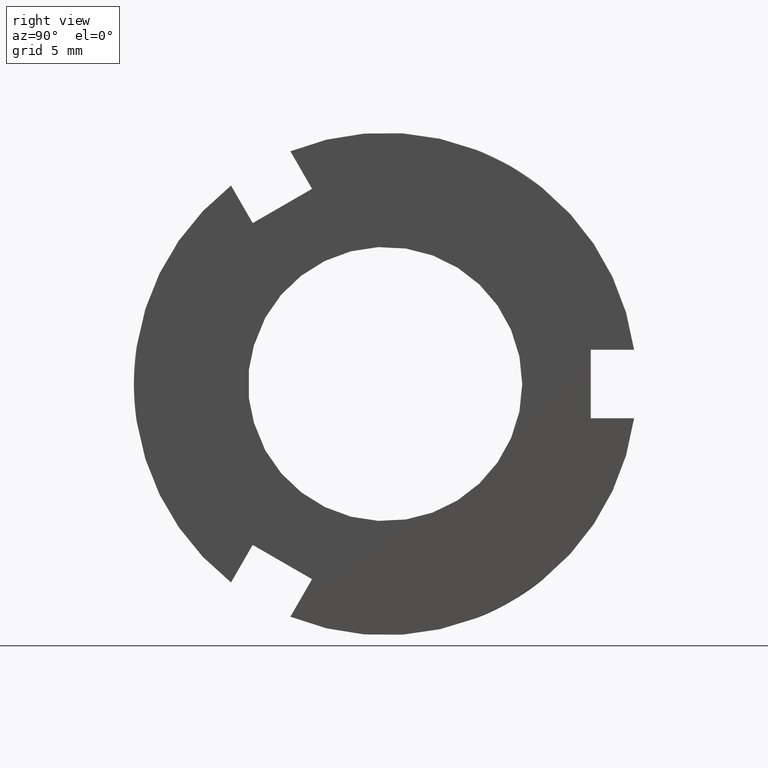
[diagram: clean part render]
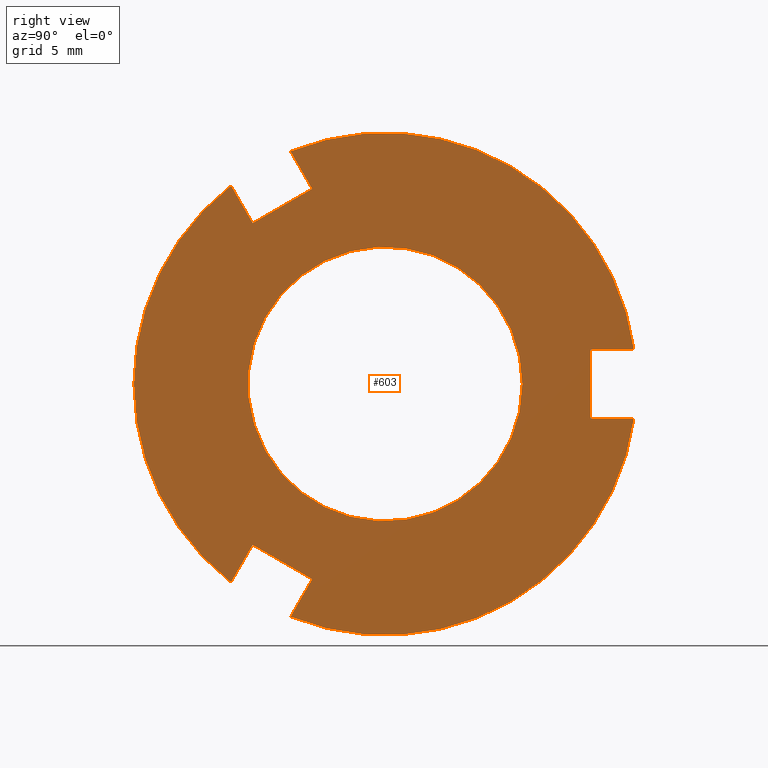
[diagram: same view with one face highlighted and labeled with its STEP entity id]
A machine part, right view. The second image highlights one B-rep face of the part: STEP entity #603.
In plain terms, the highlighted planar face has unit normal (1, 0, 0).
Its self-contained STEP definition (entity closure, byte-faithful):
#83=CARTESIAN_POINT('',(7.999999999999996,-5.799038105676662,-7.044228634059944));
#84=VERTEX_POINT('',#83);
#91=CARTESIAN_POINT('',(7.999999999999996,-6.747661785102503,-8.687293044088431));
#92=VERTEX_POINT('',#91);
#93=CARTESIAN_POINT('',(7.999999999999996,-6.747661785102503,-8.687293044088431));
#94=DIRECTION('',(0.0,0.500000000000000,0.866025403784438));
#95=VECTOR('',#94,1.897247358851682);
#96=LINE('',#93,#95);
#97=EDGE_CURVE('',#92,#84,#96,.T.);
#123=CARTESIAN_POINT('',(7.999999999999996,-4.149585573749189,-10.187293044088435));
#124=VERTEX_POINT('',#123);
#131=CARTESIAN_POINT('',(7.999999999999996,-3.200961894323347,-8.544228634059948));
#132=VERTEX_POINT('',#131);
#133=CARTESIAN_POINT('',(7.999999999999996,-3.200961894323347,-8.544228634059950));
#134=DIRECTION('',(0.0,-0.500000000000001,-0.866025403784438));
#135=VECTOR('',#134,1.897247358851682);
#136=LINE('',#133,#135);
#137=EDGE_CURVE('',#132,#124,#136,.T.);
#162=CARTESIAN_POINT('',(7.999999999999996,-5.799038105676664,-7.044228634059948));
#163=DIRECTION('',(0.0,0.866025403784438,-0.500000000000001));
#164=VECTOR('',#163,3.000000000000000);
#165=LINE('',#162,#164);
#166=EDGE_CURVE('',#84,#132,#165,.T.);
#281=CARTESIAN_POINT('',(7.999999999999996,-3.200961894323340,8.544228634059948));
#282=VERTEX_POINT('',#281);
#289=CARTESIAN_POINT('',(7.999999999999996,-4.149585573749180,10.187293044088436));
#290=VERTEX_POINT('',#289);
#291=CARTESIAN_POINT('',(7.999999999999996,-4.149585573749180,10.187293044088435));
#292=DIRECTION('',(0.0,0.500000000000000,-0.866025403784439));
#293=VECTOR('',#292,1.897247358851681);
#294=LINE('',#291,#293);
#295=EDGE_CURVE('',#290,#282,#294,.T.);
#321=CARTESIAN_POINT('',(7.999999999999996,-6.747661785102497,8.687293044088436));
#322=VERTEX_POINT('',#321);
#329=CARTESIAN_POINT('',(7.999999999999996,-5.799038105676656,7.044228634059949));
#330=VERTEX_POINT('',#329);
#331=CARTESIAN_POINT('',(7.999999999999996,-5.799038105676658,7.044228634059950));
#332=DIRECTION('',(0.0,-0.500000000000000,0.866025403784439));
#333=VECTOR('',#332,1.897247358851680);
#334=LINE('',#331,#333);
#335=EDGE_CURVE('',#330,#322,#334,.T.);
#360=CARTESIAN_POINT('',(7.999999999999996,-3.200961894323341,8.544228634059950));
#361=DIRECTION('',(0.0,-0.866025403784439,-0.500000000000000));
#362=VECTOR('',#361,2.999999999999999);
#363=LINE('',#360,#362);
#364=EDGE_CURVE('',#282,#330,#363,.T.);
#532=CARTESIAN_POINT('',(7.999999999999996,8.500000000000000,0.0));
#533=DIRECTION('',(1.0,0.0,0.0));
#534=DIRECTION('',(0.0,0.0,-1.0));
#535=AXIS2_PLACEMENT_3D('',#532,#533,#534);
#536=PLANE('',#535);
#537=ORIENTED_EDGE('',*,*,#97,.T.);
#538=ORIENTED_EDGE('',*,*,#166,.T.);
#539=ORIENTED_EDGE('',*,*,#137,.T.);
#540=CARTESIAN_POINT('',(7.999999999999996,10.897247358851681,-1.500000000000000));
#541=VERTEX_POINT('',#540);
#542=CARTESIAN_POINT('',(7.999999999999996,0.0,0.0));
#543=DIRECTION('',(1.0,0.0,0.0));
#544=DIRECTION('',(0.0,1.0,0.0));
#545=AXIS2_PLACEMENT_3D('',#542,#543,#544);
#546=CIRCLE('',#545,10.999999999999998);
#547=EDGE_CURVE('',#124,#541,#546,.T.);
#548=ORIENTED_EDGE('',*,*,#547,.T.);
#549=CARTESIAN_POINT('',(7.999999999999996,9.0,-1.500000000000000));
#550=VERTEX_POINT('',#549);
#551=CARTESIAN_POINT('',(7.999999999999996,10.897247358851681,-1.500000000000000));
#552=DIRECTION('',(0.0,-1.0,0.0));
#553=VECTOR('',#552,1.897247358851681);
#554=LINE('',#551,#553);
#555=EDGE_CURVE('',#541,#550,#554,.T.);
#556=ORIENTED_EDGE('',*,*,#555,.T.);
#557=CARTESIAN_POINT('',(7.999999999999996,9.0,1.500000000000000));
#558=VERTEX_POINT('',#557);
#559=CARTESIAN_POINT('',(7.999999999999996,9.0,-1.500000000000000));
#560=DIRECTION('',(0.0,0.0,1.0));
#561=VECTOR('',#560,3.000000000000001);
#562=LINE('',#559,#561);
#563=EDGE_CURVE('',#550,#558,#562,.T.);
#564=ORIENTED_EDGE('',*,*,#563,.T.);
#565=CARTESIAN_POINT('',(7.999999999999996,10.897247358851681,1.500000000000000));
#566=VERTEX_POINT('',#565);
#567=CARTESIAN_POINT('',(7.999999999999996,8.999999999999998,1.500000000000000));
#568=DIRECTION('',(0.0,1.0,0.0));
#569=VECTOR('',#568,1.897247358851681);
#570=LINE('',#567,#569);
#571=EDGE_CURVE('',#558,#566,#570,.T.);
#572=ORIENTED_EDGE('',*,*,#571,.T.);
#573=CARTESIAN_POINT('',(7.999999999999996,0.0,0.0));
#574=DIRECTION('',(1.0,0.0,0.0));
#575=DIRECTION('',(0.0,1.0,0.0));
#576=AXIS2_PLACEMENT_3D('',#573,#574,#575);
#577=CIRCLE('',#576,10.999999999999998);
#578=EDGE_CURVE('',#566,#290,#577,.T.);
#579=ORIENTED_EDGE('',*,*,#578,.T.);
#580=ORIENTED_EDGE('',*,*,#295,.T.);
#581=ORIENTED_EDGE('',*,*,#364,.T.);
#582=ORIENTED_EDGE('',*,*,#335,.T.);
#583=CARTESIAN_POINT('',(7.999999999999996,0.0,0.0));
#584=DIRECTION('',(1.0,0.0,0.0));
#585=DIRECTION('',(0.0,1.0,0.0));
#586=AXIS2_PLACEMENT_3D('',#583,#584,#585);
#587=CIRCLE('',#586,10.999999999999998);
#588=EDGE_CURVE('',#322,#92,#587,.T.);
#589=ORIENTED_EDGE('',*,*,#588,.T.);
#590=EDGE_LOOP('',(#537,#538,#539,#548,#556,#564,#572,#579,#580,#581,#582,#589));
#591=FACE_OUTER_BOUND('',#590,.T.);
#592=CARTESIAN_POINT('',(7.999999999999997,6.000000000000001,0.0));
#593=VERTEX_POINT('',#592);
#594=CARTESIAN_POINT('',(7.999999999999997,0.0,0.0));
#595=DIRECTION('',(1.0,0.0,0.0));
#596=DIRECTION('',(0.0,1.0,0.0));
#597=AXIS2_PLACEMENT_3D('',#594,#595,#596);
#598=CIRCLE('',#597,6.000000000000001);
#599=EDGE_CURVE('',#593,#593,#598,.T.);
#600=ORIENTED_EDGE('',*,*,#599,.F.);
#601=EDGE_LOOP('',(#600));
#602=FACE_BOUND('',#601,.T.);
#603=ADVANCED_FACE('',(#591,#602),#536,.T.);